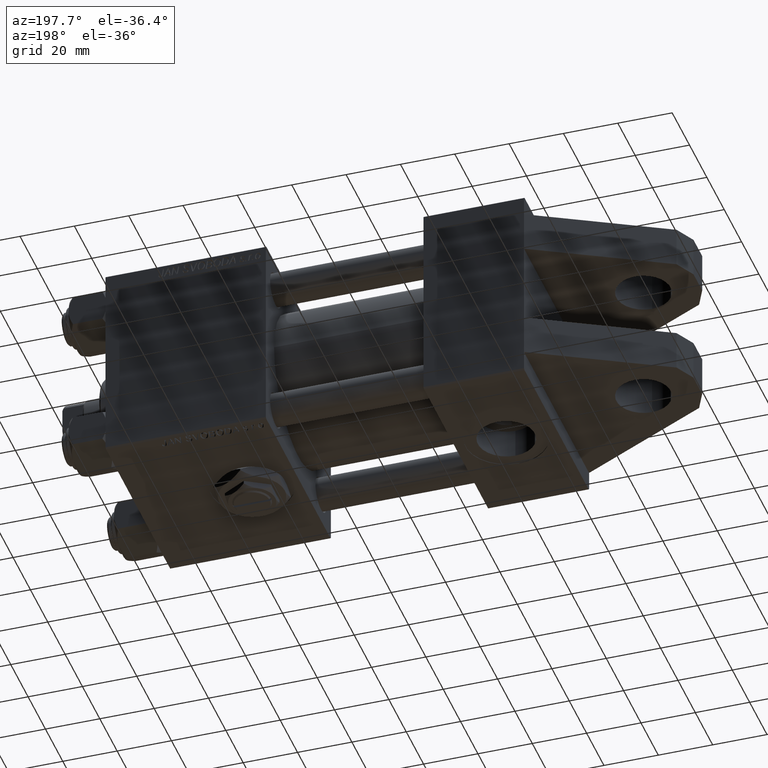
[diagram: clean part render]
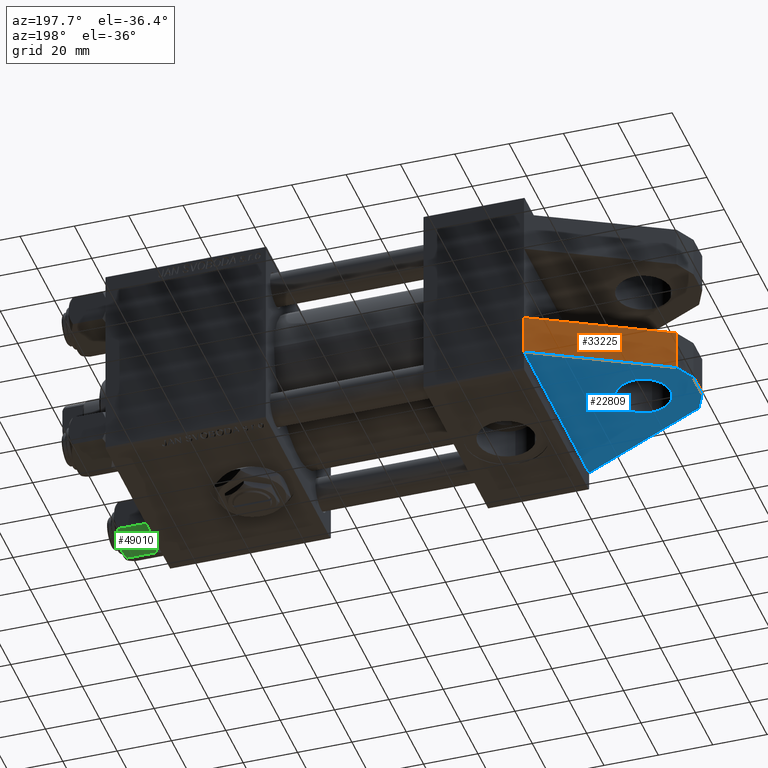
[diagram: same view with three faces highlighted in distinct colors, each labeled with its STEP entity id]
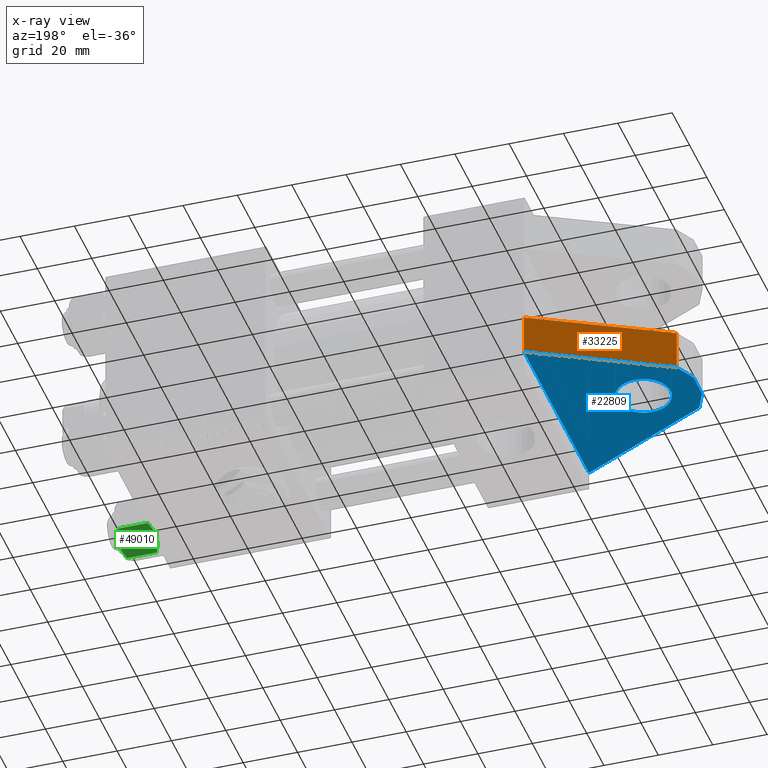
[diagram: x-ray of the same camera — body ghosted, the three highlighted faces saturated]
A machine part, auxiliary view with three faces highlighted in distinct colors.
The next image is the same camera in x-ray (body ghosted, the three faces saturated) — at least one of them is partly hidden behind the body in this view.
Their STEP definitions:

[orange] entity #33225 — the highlighted planar face has unit normal (0.4608, -0.8875, 0).
#1429 = DIRECTION ( 'NONE',  ( -0.000000000000000000, -1.000000000000000000, -0.000000000000000000 ) ) ;
#4812 = ORIENTED_EDGE ( 'NONE', *, *, #36641, .F. ) ;
#6225 = CARTESIAN_POINT ( 'NONE',  ( -48.15077811301358679, 30.00000000000000000, 12.49989272354909353 ) ) ;
#6357 = CARTESIAN_POINT ( 'NONE',  ( -48.15077811301358679, 15.00000000000000000, 12.49989272354909353 ) ) ;
#6891 = CARTESIAN_POINT ( 'NONE',  ( 0.000000000000000000, 30.00000000000000000, 37.49999999999999289 ) ) ;
#10378 = FACE_OUTER_BOUND ( 'NONE', #26799, .T. ) ;
#11573 = CARTESIAN_POINT ( 'NONE',  ( -48.15077811301358679, 30.00000000000000000, 12.49989272354909353 ) ) ;
#12118 = EDGE_CURVE ( 'NONE', #35643, #29102, #30049, .T. ) ;
#13772 = DIRECTION ( 'NONE',  ( -0.8875055616531780656, 0.000000000000000000, -0.4607970030660758498 ) ) ;
#15987 = ORIENTED_EDGE ( 'NONE', *, *, #30957, .T. ) ;
#16717 = CARTESIAN_POINT ( 'NONE',  ( -48.15077811301358679, 15.00000000000000000, 12.49989272354909353 ) ) ;
#16807 = EDGE_CURVE ( 'NONE', #37763, #40885, #37052, .T. ) ;
#17560 = CARTESIAN_POINT ( 'NONE',  ( -48.15077811301358679, 30.00000000000000000, 12.49989272354909353 ) ) ;
#23170 = VECTOR ( 'NONE', #32075, 1000.000000000000114 ) ;
#24520 = LINE ( 'NONE', #16717, #33888 ) ;
#25695 = AXIS2_PLACEMENT_3D ( 'NONE', #6225, #30655, #13772 ) ;
#26799 = EDGE_LOOP ( 'NONE', ( #15987, #31484, #4812, #50438 ) ) ;
#28163 = DIRECTION ( 'NONE',  ( 0.8875055616531780656, 0.000000000000000000, 0.4607970030660757943 ) ) ;
#28443 = CARTESIAN_POINT ( 'NONE',  ( -48.15077811301358679, 30.00000000000000000, 12.49989272354909353 ) ) ;
#28816 = CARTESIAN_POINT ( 'NONE',  ( 0.000000000000000000, 30.00000000000000000, 37.50000000000000000 ) ) ;
#29102 = VERTEX_POINT ( 'NONE', #45943 ) ;
#30049 = LINE ( 'NONE', #6891, #31207 ) ;
#30655 = DIRECTION ( 'NONE',  ( 0.4607970030660758498, 0.000000000000000000, -0.8875055616531780656 ) ) ;
#30957 = EDGE_CURVE ( 'NONE', #40885, #29102, #24520, .T. ) ;
#31207 = VECTOR ( 'NONE', #45876, 1000.000000000000000 ) ;
#31484 = ORIENTED_EDGE ( 'NONE', *, *, #12118, .F. ) ;
#32075 = DIRECTION ( 'NONE',  ( 0.8875055616531780656, 0.000000000000000000, 0.4607970030660757943 ) ) ;
#33225 = ADVANCED_FACE ( 'NONE', ( #10378 ), #49353, .F. ) ;
#33888 = VECTOR ( 'NONE', #28163, 1000.000000000000114 ) ;
#35643 = VERTEX_POINT ( 'NONE', #28816 ) ;
#36641 = EDGE_CURVE ( 'NONE', #37763, #35643, #43751, .T. ) ;
#37052 = LINE ( 'NONE', #17560, #42164 ) ;
#37763 = VERTEX_POINT ( 'NONE', #11573 ) ;
#40885 = VERTEX_POINT ( 'NONE', #6357 ) ;
#42164 = VECTOR ( 'NONE', #1429, 1000.000000000000000 ) ;
#43751 = LINE ( 'NONE', #28443, #23170 ) ;
#45876 = DIRECTION ( 'NONE',  ( -0.000000000000000000, -1.000000000000000000, -0.000000000000000000 ) ) ;
#45943 = CARTESIAN_POINT ( 'NONE',  ( 0.000000000000000000, 15.00000000000000000, 37.50000000000000000 ) ) ;
#49353 = PLANE ( 'NONE',  #25695 ) ;
#50438 = ORIENTED_EDGE ( 'NONE', *, *, #16807, .T. ) ;

[blue] entity #22809 — the highlighted planar face has unit normal (0, 0, -1).
#1681 = DIRECTION ( 'NONE',  ( 0.000000000000000000, 0.000000000000000000, 1.000000000000000000 ) ) ;
#2192 = CARTESIAN_POINT ( 'NONE',  ( -32.00000000000000000, 30.00000000000000000, -6.938893903907228378E-15 ) ) ;
#2265 = VECTOR ( 'NONE', #26726, 1000.000000000000000 ) ;
#2717 = LINE ( 'NONE', #14426, #17136 ) ;
#4496 = DIRECTION ( 'NONE',  ( -0.4226182617406929465, -0.000000000000000000, 0.9063077870366529343 ) ) ;
#5153 = VECTOR ( 'NONE', #44456, 1000.000000000000000 ) ;
#5582 = DIRECTION ( 'NONE',  ( 0.000000000000000000, 1.000000000000000000, 0.000000000000000000 ) ) ;
#5629 = FACE_BOUND ( 'NONE', #38082, .T. ) ;
#5803 = AXIS2_PLACEMENT_3D ( 'NONE', #2192, #5582, #33663 ) ;
#6621 = CARTESIAN_POINT ( 'NONE',  ( 0.000000000000000000, 30.00000000000000000, -37.50000000000000711 ) ) ;
#7770 = VERTEX_POINT ( 'NONE', #18559 ) ;
#9468 = ORIENTED_EDGE ( 'NONE', *, *, #33951, .F. ) ;
#9811 = EDGE_CURVE ( 'NONE', #35643, #42939, #25611, .T. ) ;
#11516 = ORIENTED_EDGE ( 'NONE', *, *, #43655, .T. ) ;
#11573 = CARTESIAN_POINT ( 'NONE',  ( -48.15077811301358679, 30.00000000000000000, 12.49989272354909353 ) ) ;
#12714 = ORIENTED_EDGE ( 'NONE', *, *, #9811, .T. ) ;
#13021 = CARTESIAN_POINT ( 'NONE',  ( -52.00000000000000711, 30.00000000000000000, 4.999999999999992895 ) ) ;
#13989 = EDGE_CURVE ( 'NONE', #42939, #25440, #2717, .T. ) ;
#14426 = CARTESIAN_POINT ( 'NONE',  ( -48.43732805352595960, 30.00000000000000000, -12.64017464471899110 ) ) ;
#17136 = VECTOR ( 'NONE', #50015, 1000.000000000000000 ) ;
#18559 = CARTESIAN_POINT ( 'NONE',  ( -52.00000000000000711, 30.00000000000000000, 4.999999999999992895 ) ) ;
#18569 = CARTESIAN_POINT ( 'NONE',  ( -32.00000000000000000, 30.00000000000000000, -6.938893903907228378E-15 ) ) ;
#18897 = ORIENTED_EDGE ( 'NONE', *, *, #36641, .T. ) ;
#20874 = CARTESIAN_POINT ( 'NONE',  ( -52.00000000000000711, 30.00000000000000000, -5.000000000000007105 ) ) ;
#21229 = FACE_OUTER_BOUND ( 'NONE', #36547, .T. ) ;
#21436 = DIRECTION ( 'NONE',  ( 0.000000000000000000, 1.000000000000000000, 0.000000000000000000 ) ) ;
#21544 = VERTEX_POINT ( 'NONE', #43050 ) ;
#22043 = VECTOR ( 'NONE', #46117, 1000.000000000000000 ) ;
#22464 = DIRECTION ( 'NONE',  ( 0.000000000000000000, -0.000000000000000000, 1.000000000000000000 ) ) ;
#22809 = ADVANCED_FACE ( 'NONE', ( #21229, #5629 ), #32669, .T. ) ;
#23170 = VECTOR ( 'NONE', #32075, 1000.000000000000114 ) ;
#23524 = CARTESIAN_POINT ( 'NONE',  ( -32.00000000000000000, 30.00000000000000000, 9.999999999999992895 ) ) ;
#25440 = VERTEX_POINT ( 'NONE', #32103 ) ;
#25611 = LINE ( 'NONE', #42214, #22043 ) ;
#25733 = AXIS2_PLACEMENT_3D ( 'NONE', #18569, #21436, #1681 ) ;
#26726 = DIRECTION ( 'NONE',  ( 0.000000000000000000, 0.000000000000000000, 1.000000000000000000 ) ) ;
#28443 = CARTESIAN_POINT ( 'NONE',  ( -48.15077811301358679, 30.00000000000000000, 12.49989272354909353 ) ) ;
#28816 = CARTESIAN_POINT ( 'NONE',  ( 0.000000000000000000, 30.00000000000000000, 37.50000000000000000 ) ) ;
#29047 = DIRECTION ( 'NONE',  ( -0.000000000000000000, 1.000000000000000000, 0.000000000000000000 ) ) ;
#29150 = EDGE_CURVE ( 'NONE', #21544, #7770, #37640, .T. ) ;
#30640 = AXIS2_PLACEMENT_3D ( 'NONE', #36837, #29047, #22464 ) ;
#32075 = DIRECTION ( 'NONE',  ( 0.8875055616531780656, 0.000000000000000000, 0.4607970030660757943 ) ) ;
#32103 = CARTESIAN_POINT ( 'NONE',  ( -48.43732805352595960, 30.00000000000000000, -12.64017464471899110 ) ) ;
#32238 = ORIENTED_EDGE ( 'NONE', *, *, #33955, .F. ) ;
#32669 = PLANE ( 'NONE',  #30640 ) ;
#33298 = LINE ( 'NONE', #13021, #5153 ) ;
#33663 = DIRECTION ( 'NONE',  ( 0.000000000000000000, 0.000000000000000000, 1.000000000000000000 ) ) ;
#33951 = EDGE_CURVE ( 'NONE', #36506, #51229, #44781, .T. ) ;
#33955 = EDGE_CURVE ( 'NONE', #51229, #36506, #40648, .T. ) ;
#35643 = VERTEX_POINT ( 'NONE', #28816 ) ;
#36506 = VERTEX_POINT ( 'NONE', #23524 ) ;
#36547 = EDGE_LOOP ( 'NONE', ( #42913, #18897, #12714, #36724, #11516, #42471 ) ) ;
#36641 = EDGE_CURVE ( 'NONE', #37763, #35643, #43751, .T. ) ;
#36724 = ORIENTED_EDGE ( 'NONE', *, *, #13989, .T. ) ;
#36837 = CARTESIAN_POINT ( 'NONE',  ( 0.000000000000000000, 30.00000000000000000, 0.000000000000000000 ) ) ;
#37640 = LINE ( 'NONE', #45697, #2265 ) ;
#37763 = VERTEX_POINT ( 'NONE', #11573 ) ;
#38082 = EDGE_LOOP ( 'NONE', ( #32238, #9468 ) ) ;
#40359 = LINE ( 'NONE', #20874, #42475 ) ;
#40648 = CIRCLE ( 'NONE', #25733, 10.00000000000000000 ) ;
#42214 = CARTESIAN_POINT ( 'NONE',  ( 0.000000000000000000, 30.00000000000000000, 37.49999999999999289 ) ) ;
#42273 = CARTESIAN_POINT ( 'NONE',  ( -32.00000000000000000, 30.00000000000000000, -10.00000000000000711 ) ) ;
#42471 = ORIENTED_EDGE ( 'NONE', *, *, #29150, .T. ) ;
#42475 = VECTOR ( 'NONE', #4496, 1000.000000000000114 ) ;
#42913 = ORIENTED_EDGE ( 'NONE', *, *, #44173, .T. ) ;
#42939 = VERTEX_POINT ( 'NONE', #6621 ) ;
#43050 = CARTESIAN_POINT ( 'NONE',  ( -52.00000000000000711, 30.00000000000000000, -5.000000000000007105 ) ) ;
#43655 = EDGE_CURVE ( 'NONE', #25440, #21544, #40359, .T. ) ;
#43751 = LINE ( 'NONE', #28443, #23170 ) ;
#44173 = EDGE_CURVE ( 'NONE', #7770, #37763, #33298, .T. ) ;
#44456 = DIRECTION ( 'NONE',  ( 0.4566099510066921607, 0.000000000000000000, 0.8896669897448518105 ) ) ;
#44781 = CIRCLE ( 'NONE', #5803, 10.00000000000000000 ) ;
#45697 = CARTESIAN_POINT ( 'NONE',  ( -52.00000000000000711, 30.00000000000000000, -5.000000000000007105 ) ) ;
#46117 = DIRECTION ( 'NONE',  ( 0.000000000000000000, 0.000000000000000000, -1.000000000000000000 ) ) ;
#50015 = DIRECTION ( 'NONE',  ( -0.8896669897448514774, -0.000000000000000000, 0.4566099510066927158 ) ) ;
#51229 = VERTEX_POINT ( 'NONE', #42273 ) ;

[green] entity #49010 — the highlighted planar face has unit normal (-0, -0.5, 0.866).
#289 = ORIENTED_EDGE ( 'NONE', *, *, #43493, .F. ) ;
#1564 = CARTESIAN_POINT ( 'NONE',  ( 5.810000000000000497, -10.06321519197517667, -14.00000000000000000 ) ) ;
#1818 = PLANE ( 'NONE',  #50947 ) ;
#2080 = DIRECTION ( 'NONE',  ( -1.492877345935290102E-16, 1.000000000000000000, 0.000000000000000000 ) ) ;
#2600 = CARTESIAN_POINT ( 'NONE',  ( 5.810000000000000497, -10.06321519197517667, -1.556784808024811895 ) ) ;
#2860 = CARTESIAN_POINT ( 'NONE',  ( 4.908816193182381937, -10.06321519197517844, -1.106192904616003059 ) ) ;
#5306 = CARTESIAN_POINT ( 'NONE',  ( 1.502314598737159623E-15, -10.06321519197518199, 0.000000000000000000 ) ) ;
#5449 = CARTESIAN_POINT ( 'NONE',  ( 5.810000000000000497, -10.06321519197517667, -12.44321519197518633 ) ) ;
#5556 = B_SPLINE_CURVE_WITH_KNOTS ( 'NONE', 3,
 ( #29922, #46254, #42098, #18722, #6501, #10405, #38213, #2860, #2600 ),
 .UNSPECIFIED., .F., .F.,
 ( 4, 2, 1, 2, 4 ),
 ( 0.02074012592819902273, 0.02149589804477578664, 0.02225167016135255402, 0.02376321439450608530, 0.02678630286081314441 ),
 .UNSPECIFIED. ) ;
#5634 = CARTESIAN_POINT ( 'NONE',  ( -1.772424303831128478, -10.06321519197517489, -13.86611290782776251 ) ) ;
#5894 = CARTESIAN_POINT ( 'NONE',  ( -3.960942496020602555, -10.06321519197517667, -13.28842716763895737 ) ) ;
#5959 = CARTESIAN_POINT ( 'NONE',  ( 3.958929922320422179, -10.06321519197517489, -13.25786014976459803 ) ) ;
#6222 = CARTESIAN_POINT ( 'NONE',  ( 1.020132157807625672, -10.06321519197517489, -14.00000000000000178 ) ) ;
#6501 = CARTESIAN_POINT ( 'NONE',  ( 1.772424303831126258, -10.06321519197517311, -0.1338870921722345175 ) ) ;
#6782 = EDGE_CURVE ( 'NONE', #12512, #31989, #8579, .T. ) ;
#8579 = B_SPLINE_CURVE_WITH_KNOTS ( 'NONE', 3,
 ( #16750, #32599, #12850, #17272, #18030, #33129, #25330, #5306 ),
 .UNSPECIFIED., .F., .F.,
 ( 4, 2, 2, 4 ),
 ( 0.01467889604968879332, 0.01619420351931635110, 0.01770951098894390716, 0.02074012592819902273 ),
 .UNSPECIFIED. ) ;
#8789 = CARTESIAN_POINT ( 'NONE',  ( -5.810000000000000497, -10.06321519197517844, -14.00000000000000000 ) ) ;
#10405 = CARTESIAN_POINT ( 'NONE',  ( 2.508586450168040827, -10.06321519197517667, -0.2975752632032254708 ) ) ;
#12512 = VERTEX_POINT ( 'NONE', #26846 ) ;
#12850 = CARTESIAN_POINT ( 'NONE',  ( -4.900668367960793859, -10.06321519197517667, -1.121556683709771463 ) ) ;
#16327 = EDGE_CURVE ( 'NONE', #48020, #27561, #36986, .T. ) ;
#16750 = CARTESIAN_POINT ( 'NONE',  ( -5.810000000000000497, -10.06321519197517844, -1.556784808024813893 ) ) ;
#17272 = CARTESIAN_POINT ( 'NONE',  ( -3.958929922320420403, -10.06321519197517844, -0.7421398502353970805 ) ) ;
#17335 = EDGE_CURVE ( 'NONE', #31989, #27561, #5556, .T. ) ;
#17731 = CARTESIAN_POINT ( 'NONE',  ( -5.810000000000000497, -10.06321519197517844, -12.44321519197518455 ) ) ;
#18030 = CARTESIAN_POINT ( 'NONE',  ( -3.474497094393254937, -10.06321519197517844, -0.5726960901042742469 ) ) ;
#18722 = CARTESIAN_POINT ( 'NONE',  ( 1.018274738099083976, -10.06321519197517667, -0.04822742080070548110 ) ) ;
#18785 = CARTESIAN_POINT ( 'NONE',  ( 1.502314598737159623E-15, -10.06321519197518199, 0.000000000000000000 ) ) ;
#20538 = CARTESIAN_POINT ( 'NONE',  ( 1.502314598737159820E-15, -10.06321519197518022, -14.00000000000000000 ) ) ;
#22337 = CARTESIAN_POINT ( 'NONE',  ( 1.502314598737159820E-15, -10.06321519197518022, -14.00000000000000000 ) ) ;
#24847 = EDGE_CURVE ( 'NONE', #48020, #41450, #27356, .T. ) ;
#25292 = DIRECTION ( 'NONE',  ( -0.000000000000000000, -0.000000000000000000, 1.000000000000000000 ) ) ;
#25330 = CARTESIAN_POINT ( 'NONE',  ( -1.020132157807625450, -10.06321519197517489, 4.052205619664572033E-15 ) ) ;
#25632 = VERTEX_POINT ( 'NONE', #17731 ) ;
#26239 = CARTESIAN_POINT ( 'NONE',  ( 3.474497094393254049, -10.06321519197517667, -13.42730390989572697 ) ) ;
#26846 = CARTESIAN_POINT ( 'NONE',  ( -5.810000000000000497, -10.06321519197517844, -1.556784808024813893 ) ) ;
#27356 = B_SPLINE_CURVE_WITH_KNOTS ( 'NONE', 3,
 ( #5449, #29893, #33268, #5959, #26239, #37412, #6222, #22337 ),
 .UNSPECIFIED., .F., .F.,
 ( 4, 2, 2, 4 ),
 ( 0.01467889604968879332, 0.01619420351931635110, 0.01770951098894391063, 0.02074012592819902620 ),
 .UNSPECIFIED. ) ;
#27561 = VERTEX_POINT ( 'NONE', #43938 ) ;
#28298 = DIRECTION ( 'NONE',  ( -0.000000000000000000, -0.000000000000000000, 1.000000000000000000 ) ) ;
#28679 = CARTESIAN_POINT ( 'NONE',  ( 5.810000000000000497, -10.06321519197517667, -14.00000000000000000 ) ) ;
#29267 = ORIENTED_EDGE ( 'NONE', *, *, #17335, .F. ) ;
#29566 = CARTESIAN_POINT ( 'NONE',  ( -2.508586450168039494, -10.06321519197517844, -13.70242473679676998 ) ) ;
#29819 = CARTESIAN_POINT ( 'NONE',  ( -4.908816193182379273, -10.06321519197517667, -12.89380709538398939 ) ) ;
#29893 = CARTESIAN_POINT ( 'NONE',  ( 5.359707691559676412, -10.06321519197517844, -12.66836134619534882 ) ) ;
#29922 = CARTESIAN_POINT ( 'NONE',  ( 1.502314598737159623E-15, -10.06321519197518199, 0.000000000000000000 ) ) ;
#30044 = LINE ( 'NONE', #8789, #44134 ) ;
#31989 = VERTEX_POINT ( 'NONE', #18785 ) ;
#32599 = CARTESIAN_POINT ( 'NONE',  ( -5.359707691559672860, -10.06321519197517844, -1.331638653804651851 ) ) ;
#33129 = CARTESIAN_POINT ( 'NONE',  ( -2.013954290287968352, -10.06321519197517844, -0.1570111679759963463 ) ) ;
#33268 = CARTESIAN_POINT ( 'NONE',  ( 4.900668367960796523, -10.06321519197517489, -12.87844331629023209 ) ) ;
#33545 = DIRECTION ( 'NONE',  ( -1.000000000000000000, -1.492877345935290102E-16, 0.000000000000000000 ) ) ;
#34116 = CARTESIAN_POINT ( 'NONE',  ( 5.810000000000000497, -10.06321519197517667, -12.44321519197518633 ) ) ;
#36986 = LINE ( 'NONE', #28679, #40444 ) ;
#37412 = CARTESIAN_POINT ( 'NONE',  ( 2.013954290287967019, -10.06321519197517489, -13.84298883202400532 ) ) ;
#38137 = ORIENTED_EDGE ( 'NONE', *, *, #16327, .T. ) ;
#38213 = CARTESIAN_POINT ( 'NONE',  ( 3.960942496020604331, -10.06321519197518022, -0.7115728323610380768 ) ) ;
#38898 = B_SPLINE_CURVE_WITH_KNOTS ( 'NONE', 3,
 ( #45140, #40979, #40716, #41494, #5634, #29566, #5894, #29819, #45655 ),
 .UNSPECIFIED., .F., .F.,
 ( 4, 2, 1, 2, 4 ),
 ( 0.02074012592819902620, 0.02149589804477579011, 0.02225167016135255749, 0.02376321439450608530, 0.02678630286081314441 ),
 .UNSPECIFIED. ) ;
#39822 = ORIENTED_EDGE ( 'NONE', *, *, #6782, .F. ) ;
#40444 = VECTOR ( 'NONE', #25292, 1000.000000000000000 ) ;
#40716 = CARTESIAN_POINT ( 'NONE',  ( -0.5112014849988886223, -10.06321519197517489, -13.99019602057109068 ) ) ;
#40979 = CARTESIAN_POINT ( 'NONE',  ( -0.2543996698847483806, -10.06321519197517667, -14.00000000000000355 ) ) ;
#41450 = VERTEX_POINT ( 'NONE', #20538 ) ;
#41494 = CARTESIAN_POINT ( 'NONE',  ( -1.018274738099085086, -10.06321519197517667, -13.95177257919929126 ) ) ;
#41629 = EDGE_CURVE ( 'NONE', #41450, #25632, #38898, .T. ) ;
#41834 = FACE_OUTER_BOUND ( 'NONE', #42338, .T. ) ;
#42058 = ORIENTED_EDGE ( 'NONE', *, *, #41629, .F. ) ;
#42098 = CARTESIAN_POINT ( 'NONE',  ( 0.5112014849988879561, -10.06321519197517667, -0.009803979428909967431 ) ) ;
#42338 = EDGE_LOOP ( 'NONE', ( #47684, #38137, #29267, #39822, #289, #42058 ) ) ;
#43493 = EDGE_CURVE ( 'NONE', #25632, #12512, #30044, .T. ) ;
#43938 = CARTESIAN_POINT ( 'NONE',  ( 5.810000000000000497, -10.06321519197517667, -1.556784808024811895 ) ) ;
#44134 = VECTOR ( 'NONE', #28298, 1000.000000000000000 ) ;
#45140 = CARTESIAN_POINT ( 'NONE',  ( 1.502314598737159820E-15, -10.06321519197518022, -14.00000000000000000 ) ) ;
#45655 = CARTESIAN_POINT ( 'NONE',  ( -5.810000000000000497, -10.06321519197517844, -12.44321519197518455 ) ) ;
#46254 = CARTESIAN_POINT ( 'NONE',  ( 0.2543996698847484361, -10.06321519197517667, 4.398642095091581661E-15 ) ) ;
#47684 = ORIENTED_EDGE ( 'NONE', *, *, #24847, .F. ) ;
#48020 = VERTEX_POINT ( 'NONE', #34116 ) ;
#49010 = ADVANCED_FACE ( 'NONE', ( #41834 ), #1818, .F. ) ;
#50947 = AXIS2_PLACEMENT_3D ( 'NONE', #1564, #2080, #33545 ) ;